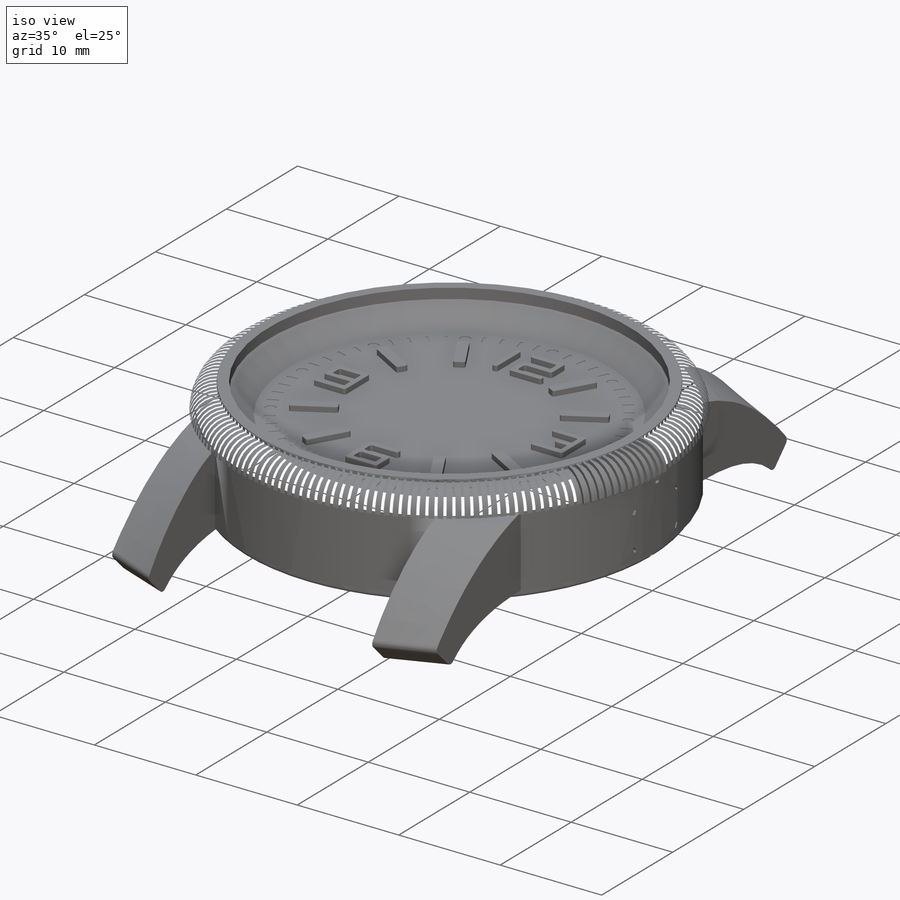
[diagram: iso view]
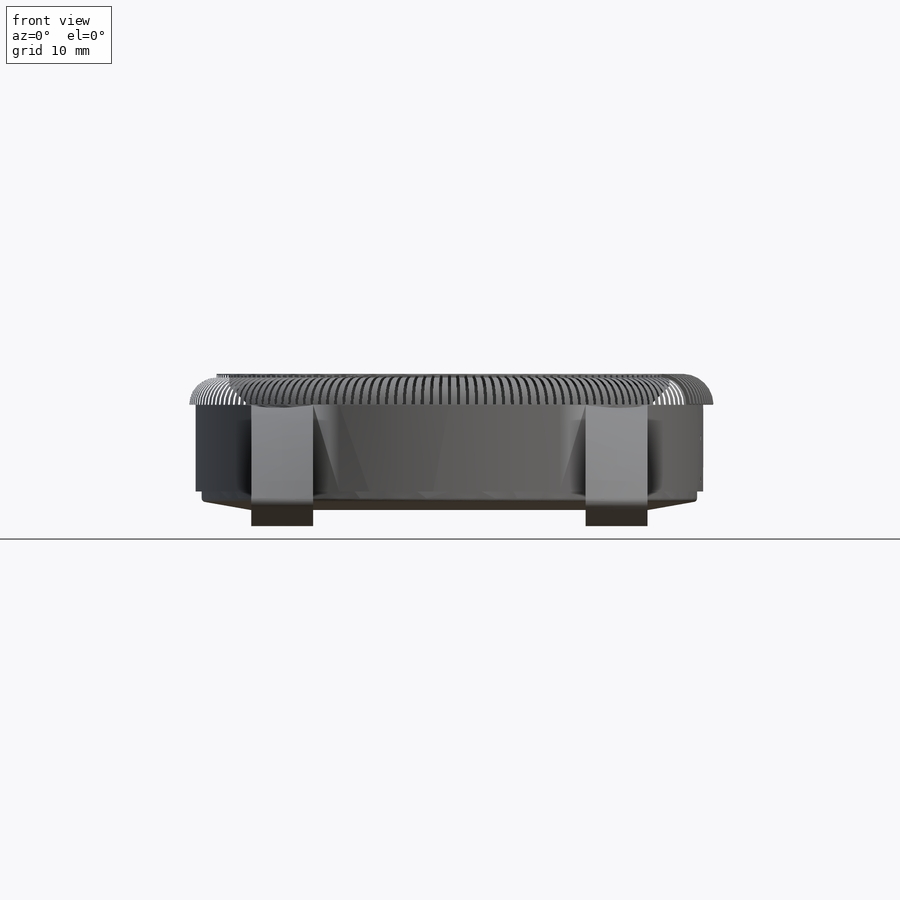
[diagram: front view]
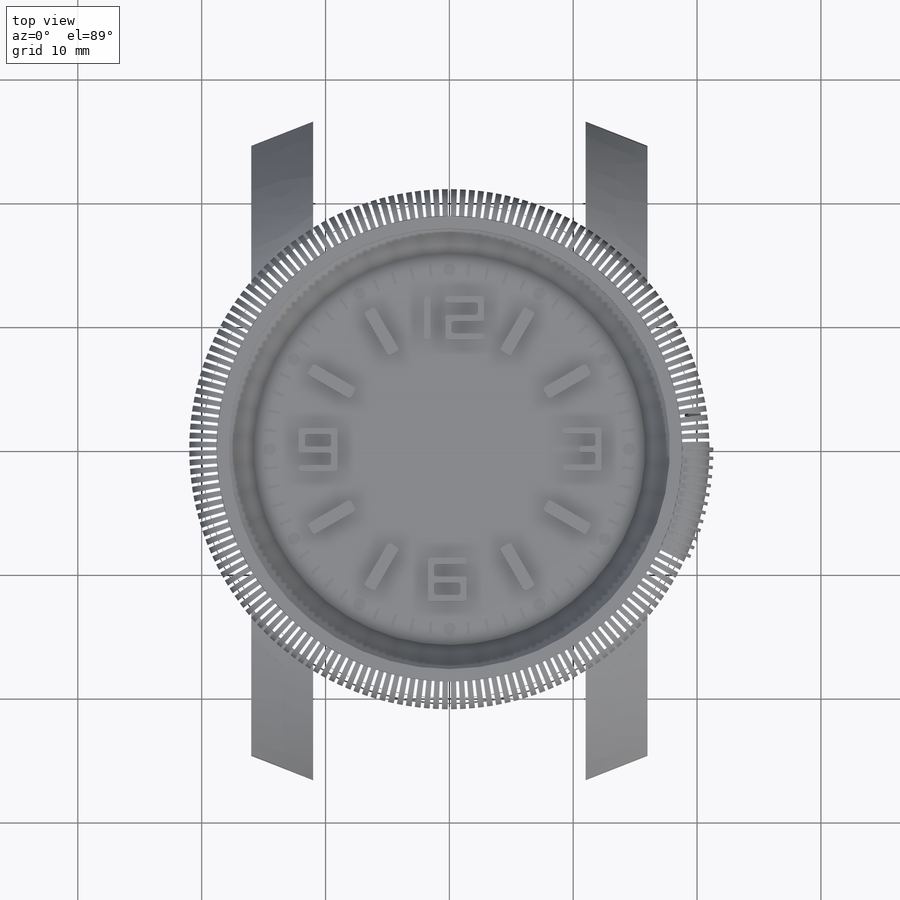
[diagram: top view]
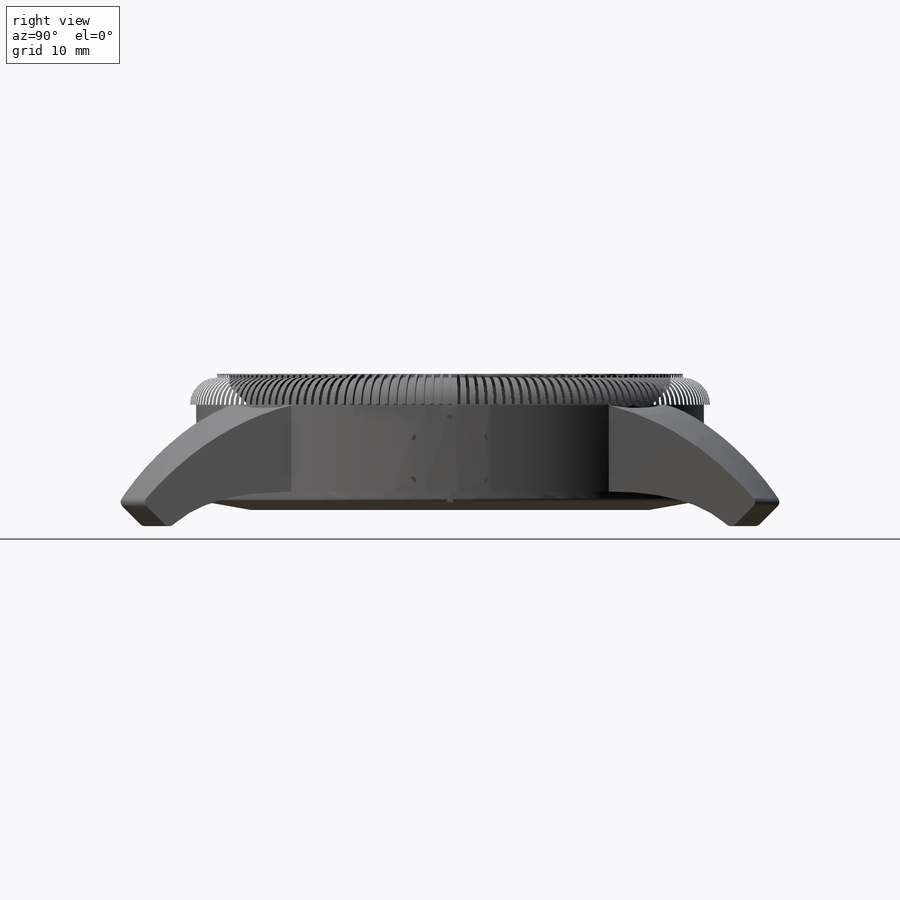
[diagram: right view]
SOLIDWORKS PART (.sldprt)
format: sldprt  version: not decoded by parser v0  size: 4,406,272 bytes
history: native  units: mm
features: sketch x24, extrude x14, plane x7, fillet x4, cut_extrude x4, chamfer x3, mirror x2, material x1, revolve x1, pattern_circular x1, sweep x1 (+16 scaffold rows collapsed)
feature tree (78):
  scaffold x16  (default folders/planes/origin — collapsed)
  material  "Material <not specified>"
  sketch  "Sketch1"  dims[D1=41.0mm]
  extrude  "Boss-Extrude1"  Depth=7mm
  sketch  "Sketch3"  dims[D1=40.0mm]
  extrude  "Boss-Extrude3"  Depth=1.5mm
  chamfer  "Chamfer2"  Distance=0.7mm Angle=80deg
  fillet  "Fillet1"  Radius=0.3mm
  sketch  "Sketch4"  dims[D1=42.0mm]
  extrude  "Boss-Extrude4"  Depth=2.2mm
  fillet  "Fillet2"  Radius=2.2mm
  sketch  "Sketch5"
  extrude  "Boss-Extrude5"  Depth=0.3mm
  sketch  "Sketch6"  dims[D1=35.6mm]
  cut_extrude  "Cut-Extrude1"  Depth=3mm
  chamfer  "Chamfer3"  Distance=2mm Angle=45deg
  plane  "Plane1"  Offset=24mm
  sketch  "Sketch7"
  sketch  "Sketch8"  dims[c1.D1=7.0mm c1.D2=7.0mm c1.D3=~0.117322mm c2.D2=0.5mm c2.D3=0.25mm c2.D4=0.25mm c2.D5=0.25mm c3.D5=90.0deg c4.D5=6.0]
  extrude  "Boss-Extrude6"  Depth=3.5mm
  chamfer  "Chamfer5"  Distance=1mm Angle=45deg
  cut_extrude  "Cut-Extrude4"  [1 undecoded]
  sketch  "Sketch8<3>"  dims[D1=5.0mm]
  plane  "Plane3"  Offset=16mm
  sketch  "Sketch13"  dims[D1=3.0mm]
  plane  "Plane4"  Offset=5mm
  sketch  "Sketch14"
  mirror  "Mirror1"
  mirror  "Mirror2"
  sketch  "Sketch9"  dims[D1=12.0 D2=60.0]
  cut_extrude  "Cut-Extrude3"  Depth=0.05mm
  sketch  "Sketch15"  dims[c1.D9=0.2mm c1.D10=0.2mm c1.D11=0.2mm c1.D12=0.2mm c1.D20=0.2mm c1.D17=~0.180887mm c1.D29=0.2mm c1.D24=0.2mm c1.D25=0.2mm c1.D35=0.2mm c1.D27=0.2mm c1.D34=0.2mm c1.D1=0.5mm c1.D3=0.5mm c1.D4=0.5mm c1.D5=0.5mm c1.D6=1.8mm c1.D7=1.0mm c1.D8=1.0mm c1.D13=0.5mm c1.D14=0.5mm c1.D15=0.5mm c1.D16=0.5mm c2.D17=1.8mm c2.D18=1.0mm c2.D19=1.0mm c2.D21=0.5mm c2.D22=0.5mm c2.D23=0.5mm c2.D24=0.5mm c2.D25=0.5mm c2.D26=1.8mm c2.D27=1.0mm c2.D28=1.0mm c2.D30=0.5mm c3.D26=0.5mm c3.D27=0.5mm c3.D28=0.5mm c3.D31=0.5mm c3.D32=1.8mm c3.D33=1.0mm c3.D34=1.0mm c3.D36=0.5mm c4.D32=0.5mm c4.D2=12.0]
  extrude  "Boss-Extrude8"  Depth=0.5mm
  sketch  "Sketch10"  dims[D1=0.1mm D2=0.1mm]
  revolve  "Revolve1"  Angle=0.35deg
  pattern_circular  "CirPattern1"  Count=180 Angle=2deg
  plane  "Plane5"  Offset=0.5mm
  sketch  "Sketch16"  dims[D1=1.5mm D2=0.7mm D3=7.5mm D4=0.7mm D5=0.4mm D6=0.4mm]
  extrude  "Boss-Extrude9"  Depth=0.1mm
  extrude  "Boss-Extrude10"  [1 undecoded]
  sketch  "Sketch16<3>"  dims[D1=0.05mm]
  extrude  "Boss-Extrude11"  [1 undecoded]
  sketch  "Sketch16<4>"  dims[D1=0.1mm]
  extrude  "Boss-Extrude12"  [1 undecoded]
  sketch  "Sketch16<5>"  dims[D1=0.05mm]
  sketch  "Sketch17"  dims[c1.D1=~12.120852mm c2.D1=~93.972323deg c3.D1=0.5mm c3.D2=0.35mm]
  extrude  "Boss-Extrude13"  Depth=0.05mm
  plane  "Plane6"  Offset=22.5mm
  sketch  "Sketch21"  dims[D4=1.0mm D1=10.9mm D2=10.9mm D3=3.0mm D5=1.0mm]
  extrude  "Boss-Extrude18"  Depth=110mm
  plane  "Plane7"  Offset=22.5mm
  sketch  "Sketch23"  dims[c1.D5=1.0mm c1.D1=21.8mm c1.D2=10.9mm c1.D3=~11.21516mm c2.D3=90.0deg c3.D3=2.0mm c3.D4=3.0mm]
  extrude  "Boss-Extrude19"  Depth=70mm
  fillet  "Fillet4"  Radius=1mm
  fillet  "Fillet5"  Radius=1mm
  sketch  "Sketch24"  dims[D1=3.0mm D2=4.0mm D3=10.0]
  cut_extrude  "Cut-Extrude5"  [1 undecoded]
  extrude  "Boss-Extrude21"  [1 undecoded]
  sketch  "Sketch24<4>"  dims[D1=0.2mm]
  plane  "Plane8"  Offset=50mm
  sketch  "Sketch25"  dims[c1.D5=1.0mm c1.D1=2.0mm c1.D2=~25.145195mm c1.D3=3.0mm c1.D4=3.0mm c2.D5=~2.345195mm c2.D2=25.8mm]
  sketch  "Sketch26"
  sweep  "Sweep2"
decode coverage: 41 of 54 modeling features carry decoded parameters
note: ~ marks probable driven/reference dimensions
note: 6 parameter values undecoded
summary: no parameter record found for 6 features
note: suppression state not decoded; provenance and decode notes live in map.json
